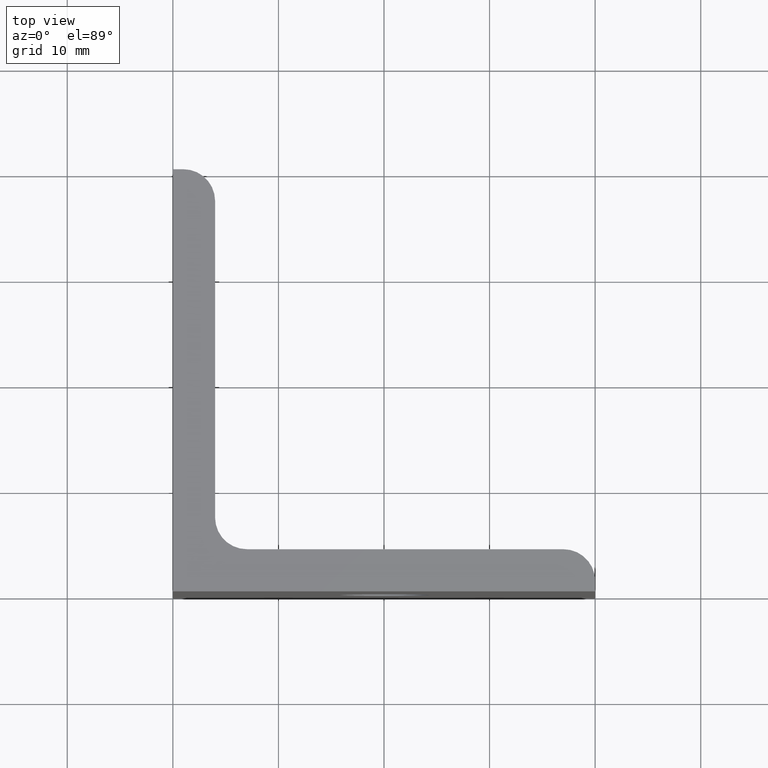
[diagram: clean part render]
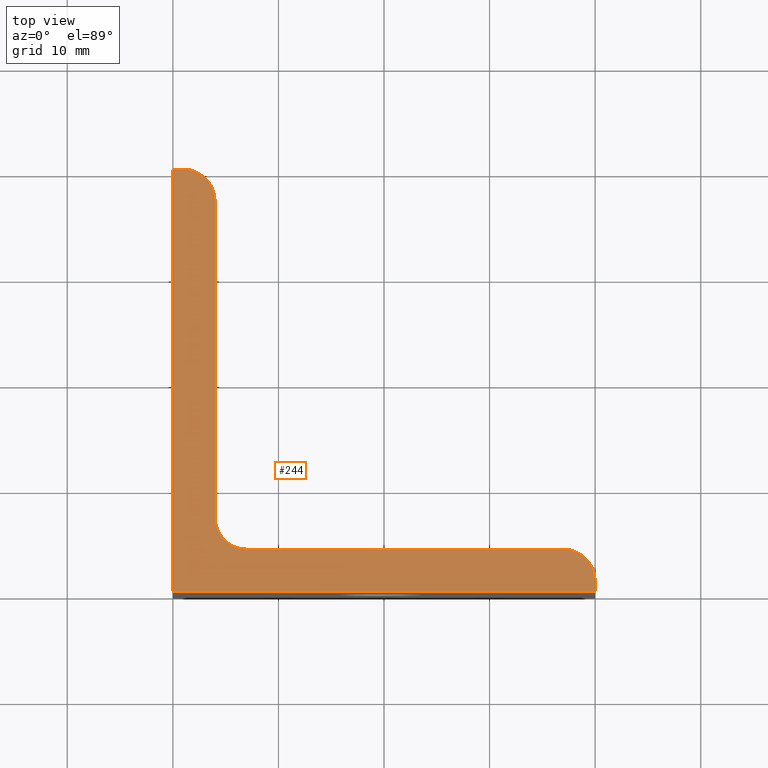
[diagram: same view with one face highlighted and labeled with its STEP entity id]
A machine part, top view. The second image highlights one B-rep face of the part: STEP entity #244.
In plain terms, the highlighted planar face has unit normal (0, 0, 1).
Its self-contained STEP definition (entity closure, byte-faithful):
#17=LINE('',#358,#38);
#21=LINE('',#365,#42);
#24=LINE('',#371,#45);
#28=LINE('',#383,#49);
#32=LINE('',#395,#53);
#35=LINE('',#404,#56);
#38=VECTOR('',#289,40.);
#42=VECTOR('',#295,40.);
#45=VECTOR('',#300,1.);
#49=VECTOR('',#312,30.);
#53=VECTOR('',#324,30.);
#56=VECTOR('',#335,1.);
#63=PLANE('',#269);
#82=FACE_OUTER_BOUND('',#101,.T.);
#101=EDGE_LOOP('',(#210,#211,#212,#213,#214,#215,#216,#217,#218));
#108=CIRCLE('',#259,3.);
#110=CIRCLE('',#263,3.);
#112=CIRCLE('',#267,3.);
#119=VERTEX_POINT('',#355);
#120=VERTEX_POINT('',#357);
#122=VERTEX_POINT('',#363);
#124=VERTEX_POINT('',#369);
#126=VERTEX_POINT('',#375);
#128=VERTEX_POINT('',#381);
#130=VERTEX_POINT('',#387);
#132=VERTEX_POINT('',#393);
#134=VERTEX_POINT('',#399);
#141=EDGE_CURVE('',#120,#119,#17,.T.);
#145=EDGE_CURVE('',#119,#122,#21,.T.);
#148=EDGE_CURVE('',#122,#124,#24,.T.);
#151=EDGE_CURVE('',#124,#126,#108,.T.);
#154=EDGE_CURVE('',#126,#128,#28,.T.);
#157=EDGE_CURVE('',#128,#130,#110,.T.);
#160=EDGE_CURVE('',#130,#132,#32,.T.);
#163=EDGE_CURVE('',#132,#134,#112,.T.);
#165=EDGE_CURVE('',#134,#120,#35,.T.);
#210=ORIENTED_EDGE('',*,*,#141,.T.);
#211=ORIENTED_EDGE('',*,*,#145,.T.);
#212=ORIENTED_EDGE('',*,*,#148,.T.);
#213=ORIENTED_EDGE('',*,*,#151,.T.);
#214=ORIENTED_EDGE('',*,*,#154,.T.);
#215=ORIENTED_EDGE('',*,*,#157,.T.);
#216=ORIENTED_EDGE('',*,*,#160,.T.);
#217=ORIENTED_EDGE('',*,*,#163,.T.);
#218=ORIENTED_EDGE('',*,*,#165,.T.);
#244=ADVANCED_FACE('',(#82),#63,.T.);
#259=AXIS2_PLACEMENT_3D('',#377,#306,#307);
#263=AXIS2_PLACEMENT_3D('',#389,#318,#319);
#267=AXIS2_PLACEMENT_3D('',#401,#330,#331);
#269=AXIS2_PLACEMENT_3D('',#405,#336,#337);
#289=DIRECTION('',(0.,-1.,0.));
#295=DIRECTION('',(1.,0.,0.));
#300=DIRECTION('',(0.,1.,0.));
#306=DIRECTION('center_axis',(0.,0.,1.));
#307=DIRECTION('ref_axis',(-1.,0.,0.));
#312=DIRECTION('',(-1.,0.,0.));
#318=DIRECTION('center_axis',(0.,0.,-1.));
#319=DIRECTION('ref_axis',(1.,0.,0.));
#324=DIRECTION('',(0.,1.,0.));
#330=DIRECTION('center_axis',(0.,0.,1.));
#331=DIRECTION('ref_axis',(1.,0.,0.));
#335=DIRECTION('',(-1.,0.,0.));
#336=DIRECTION('center_axis',(0.,0.,1.));
#337=DIRECTION('ref_axis',(1.,0.,0.));
#355=CARTESIAN_POINT('',(0.,0.,20.));
#357=CARTESIAN_POINT('',(0.,40.,20.));
#358=CARTESIAN_POINT('',(0.,40.,20.));
#363=CARTESIAN_POINT('',(40.,0.,20.));
#365=CARTESIAN_POINT('',(0.,0.,20.));
#369=CARTESIAN_POINT('',(40.,1.,20.));
#371=CARTESIAN_POINT('',(40.,0.,20.));
#375=CARTESIAN_POINT('',(37.,4.,20.));
#377=CARTESIAN_POINT('Origin',(37.,1.,20.));
#381=CARTESIAN_POINT('',(7.00000000000002,4.,20.));
#383=CARTESIAN_POINT('',(37.,4.,20.));
#387=CARTESIAN_POINT('',(4.00000000000002,7.,20.));
#389=CARTESIAN_POINT('Origin',(7.00000000000002,7.,20.));
#393=CARTESIAN_POINT('',(4.00000000000002,37.,20.));
#395=CARTESIAN_POINT('',(4.00000000000002,7.,20.));
#399=CARTESIAN_POINT('',(1.,40.,20.));
#401=CARTESIAN_POINT('Origin',(1.,37.,20.));
#404=CARTESIAN_POINT('',(1.,40.,20.));
#405=CARTESIAN_POINT('Origin',(-2.,-2.,20.));